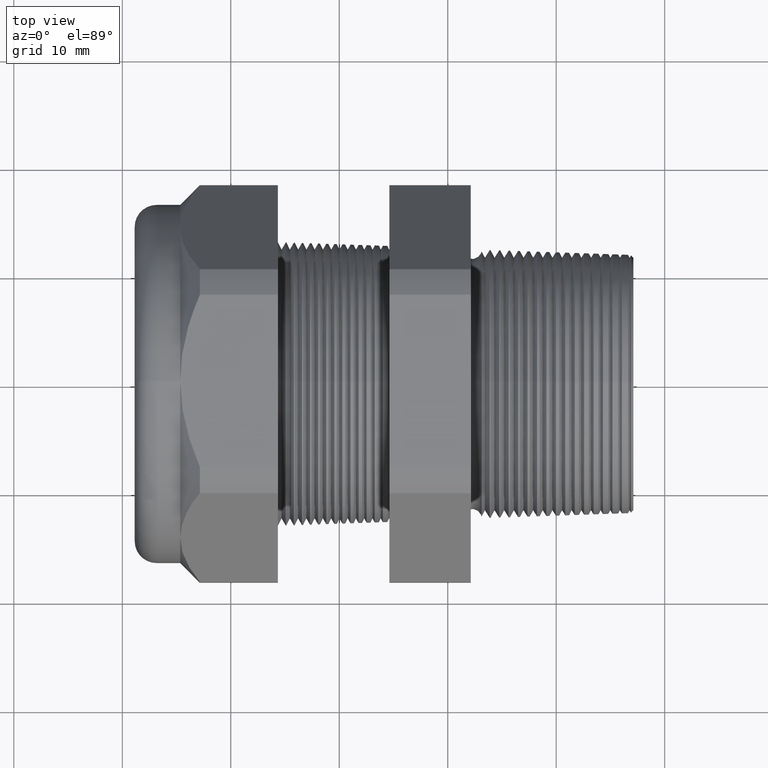
[diagram: clean part render]
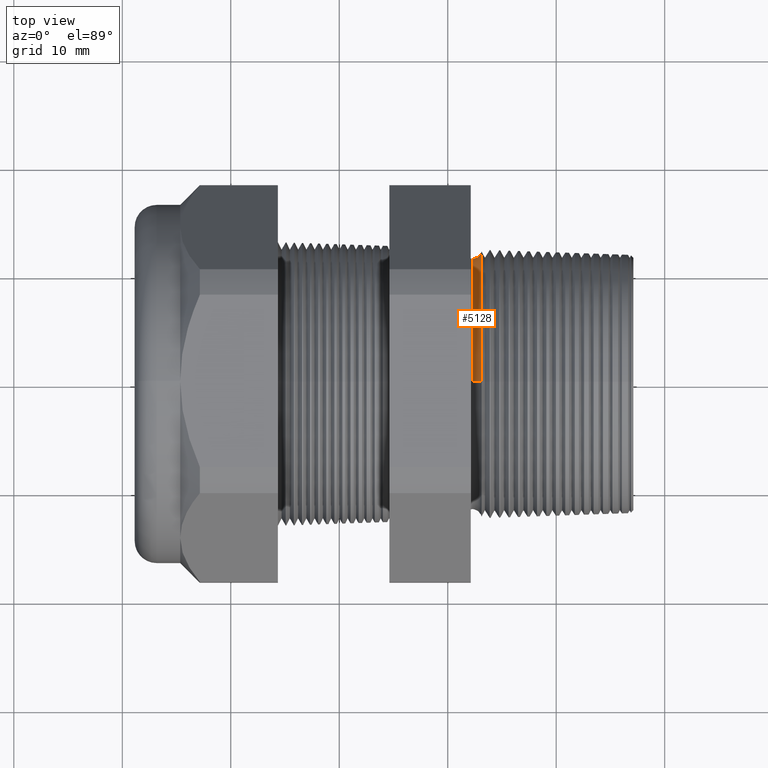
[diagram: same view with one face highlighted and labeled with its STEP entity id]
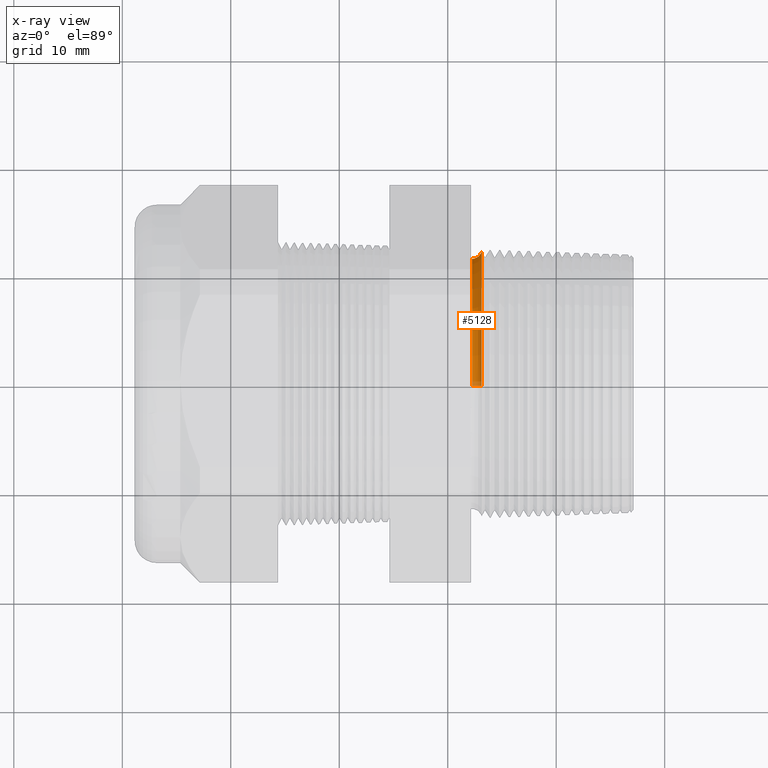
[diagram: x-ray of the same camera — body ghosted, the highlighted face saturated]
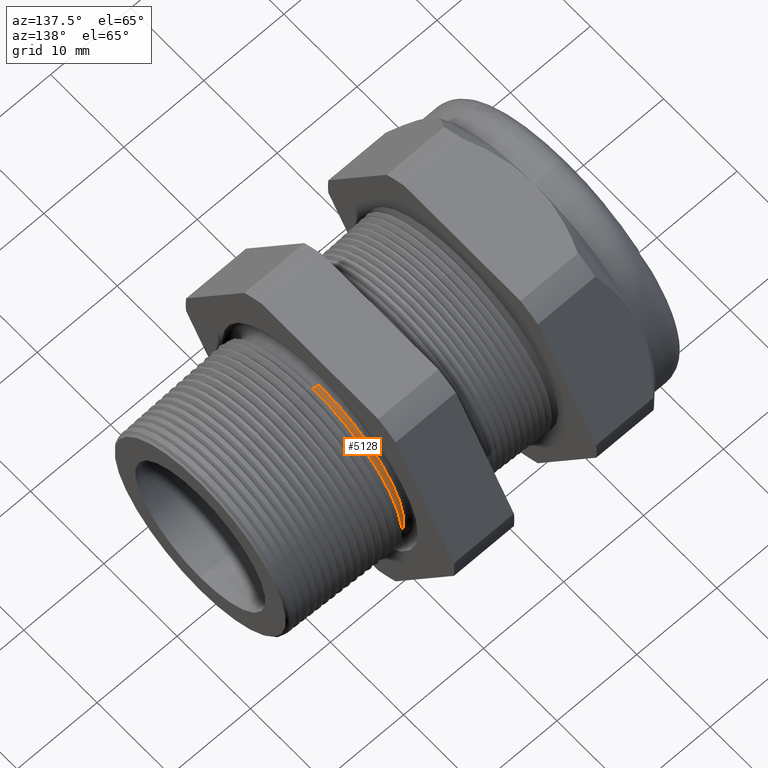
[diagram: same view with one face highlighted and labeled with its STEP entity id]
A machine part, top view. The second image highlights one B-rep face of the part: STEP entity #5128.
The next image is the same camera in x-ray: the body ghosted, the highlighted face saturated — about 3% of this face is hidden behind the body in this view.
A second angle (auxiliary view) of the same face is appended — the face is thin or edge-on in the first view.
In plain terms, the highlighted toroidal blend (fillet) surface has major radius 12.4598 mm and minor (blend) radius 0.889 mm.
Its self-contained STEP definition (entity closure, byte-faithful):
#4829 = EDGE_CURVE ( 'NONE', #5954, #5955, #4926, .T. ) ;
#4846 = ORIENTED_EDGE ( 'NONE', *, *, #4829, .T. ) ;
#4916 = DIRECTION ( 'NONE',  ( 0.0000000000000000000, 0.0000000000000000000, -1.000000000000000000 ) ) ;
#4917 = DIRECTION ( 'NONE',  ( 1.000000000000000000, 0.0000000000000000000, 0.0000000000000000000 ) ) ;
#4918 = CARTESIAN_POINT ( 'NONE',  ( -0.3049999999999999400, 0.0000000000000000000, 0.0000000000000000000 ) ) ;
#4919 = AXIS2_PLACEMENT_3D ( 'NONE', #4918, #4917, #4916 ) ;
#4920 = TOROIDAL_SURFACE ( 'NONE', #4919, 0.4905444626882251600, 0.03499999999999994800 ) ;
#4921 = FACE_OUTER_BOUND ( 'NONE', #5554, .T. ) ;
#4922 = DIRECTION ( 'NONE',  ( 0.0000000000000000000, 0.0000000000000000000, -1.000000000000000000 ) ) ;
#4923 = DIRECTION ( 'NONE',  ( 0.0000000000000000000, -1.000000000000000000, 0.0000000000000000000 ) ) ;
#4924 = CARTESIAN_POINT ( 'NONE',  ( -0.3049999999999999400, 0.0000000000000000000, -0.4905444626882251600 ) ) ;
#4925 = AXIS2_PLACEMENT_3D ( 'NONE', #4924, #4923, #4922 ) ;
#4926 = CIRCLE ( 'NONE', #4925, 0.03499999999999996900 ) ;
#4977 = DIRECTION ( 'NONE',  ( 0.0000000000000000000, 1.224646799147352700E-016, 1.000000000000000000 ) ) ;
#4978 = DIRECTION ( 'NONE',  ( 0.0000000000000000000, 1.000000000000000000, -1.224646799147353200E-016 ) ) ;
#4979 = CARTESIAN_POINT ( 'NONE',  ( -0.3049999999999999400, 6.007437060705931600E-017, 0.4905444626882251600 ) ) ;
#4980 = AXIS2_PLACEMENT_3D ( 'NONE', #4979, #4978, #4977 ) ;
#4981 = CIRCLE ( 'NONE', #4980, 0.03499999999999996900 ) ;
#5017 = CARTESIAN_POINT ( 'NONE',  ( -0.3049999999999999400, 0.0000000000000000000, -0.4555444626882251800 ) ) ;
#5022 = CARTESIAN_POINT ( 'NONE',  ( -0.2708719432804223600, 5.912358599665053600E-017, -0.4827807171652649900 ) ) ;
#5025 = CARTESIAN_POINT ( 'NONE',  ( -0.3049999999999999400, 5.578810681004358900E-017, 0.4555444626882251800 ) ) ;
#5026 = DIRECTION ( 'NONE',  ( 0.0000000000000000000, 0.0000000000000000000, -1.000000000000000000 ) ) ;
#5027 = DIRECTION ( 'NONE',  ( 1.000000000000000000, 0.0000000000000000000, 0.0000000000000000000 ) ) ;
#5028 = CARTESIAN_POINT ( 'NONE',  ( -0.3049999999999999400, 0.0000000000000000000, 0.0000000000000000000 ) ) ;
#5029 = AXIS2_PLACEMENT_3D ( 'NONE', #5028, #5027, #5026 ) ;
#5030 = CIRCLE ( 'NONE', #5029, 0.4555444626882251800 ) ;
#5031 = DIRECTION ( 'NONE',  ( 0.0000000000000000000, 0.0000000000000000000, 1.000000000000000000 ) ) ;
#5032 = DIRECTION ( 'NONE',  ( 1.000000000000000000, 0.0000000000000000000, 0.0000000000000000000 ) ) ;
#5033 = CARTESIAN_POINT ( 'NONE',  ( -0.2708719432804223600, 0.0000000000000000000, 0.0000000000000000000 ) ) ;
#5034 = AXIS2_PLACEMENT_3D ( 'NONE', #5033, #5032, #5031 ) ;
#5035 = CIRCLE ( 'NONE', #5034, 0.4827807171652649900 ) ;
#5036 = CARTESIAN_POINT ( 'NONE',  ( -0.2708719432804223600, 0.0000000000000000000, 0.4827807171652649900 ) ) ;
#5128 = ADVANCED_FACE ( 'NONE', ( #4921 ), #4920, .F. ) ;
#5554 = EDGE_LOOP ( 'NONE', ( #4846, #5953, #5945, #5940 ) ) ;
#5939 = EDGE_CURVE ( 'NONE', #5943, #5950, #4981, .T. ) ;
#5940 = ORIENTED_EDGE ( 'NONE', *, *, #5944, .F. ) ;
#5943 = VERTEX_POINT ( 'NONE', #5036 ) ;
#5944 = EDGE_CURVE ( 'NONE', #5954, #5943, #5035, .T. ) ;
#5945 = ORIENTED_EDGE ( 'NONE', *, *, #5939, .F. ) ;
#5947 = EDGE_CURVE ( 'NONE', #5955, #5950, #5030, .T. ) ;
#5950 = VERTEX_POINT ( 'NONE', #5025 ) ;
#5953 = ORIENTED_EDGE ( 'NONE', *, *, #5947, .T. ) ;
#5954 = VERTEX_POINT ( 'NONE', #5022 ) ;
#5955 = VERTEX_POINT ( 'NONE', #5017 ) ;